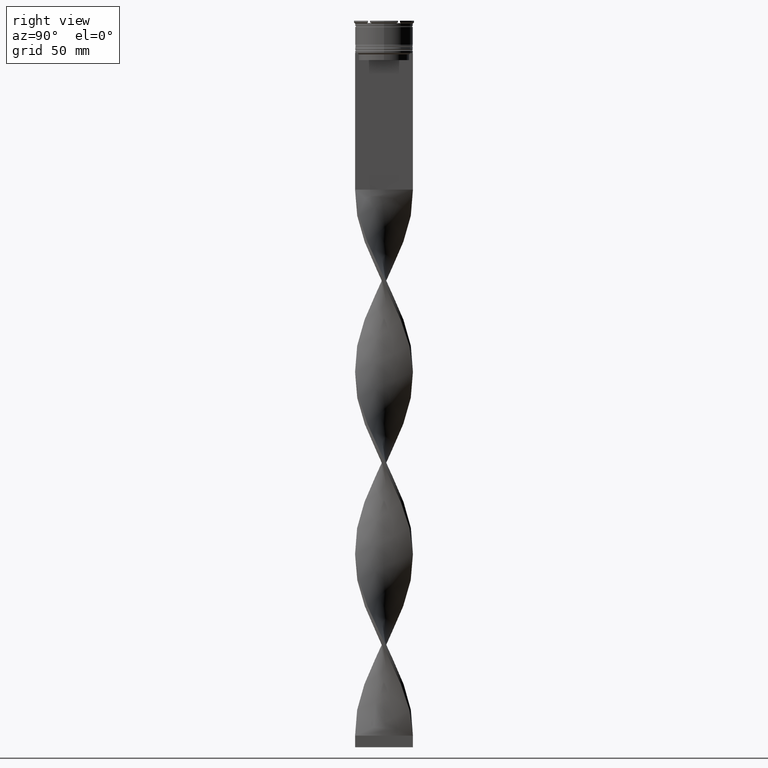
[diagram: clean part render]
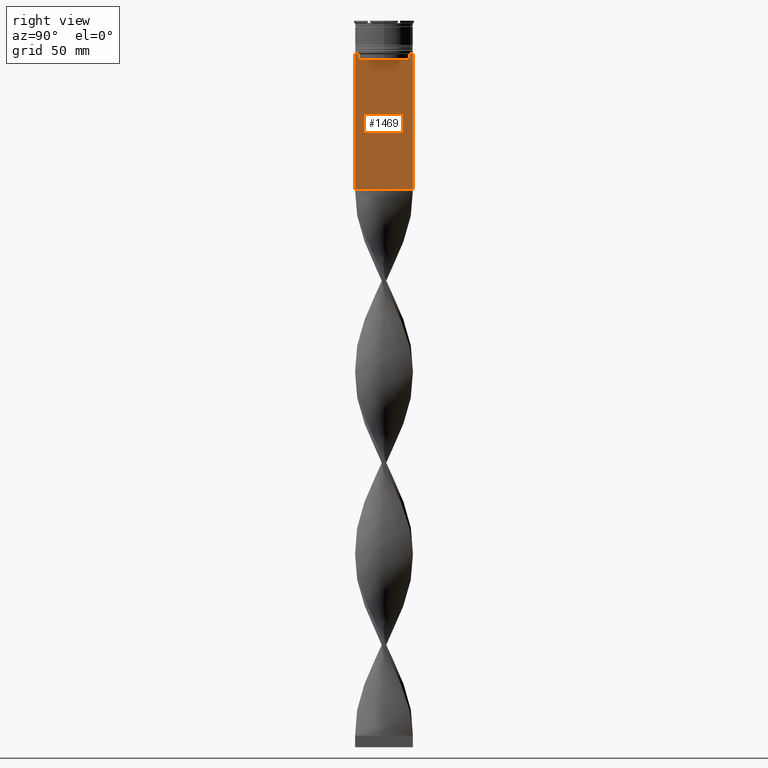
[diagram: same view with one face highlighted and labeled with its STEP entity id]
A machine part, right view. The second image highlights one B-rep face of the part: STEP entity #1469.
In plain terms, the highlighted planar face has unit normal (-1, 0, 0).
Its self-contained STEP definition (entity closure, byte-faithful):
#66 = CARTESIAN_POINT ( 'NONE',  ( 0.7500000000000002220, 12.50000000000000000, -73.00000000000001421 ) ) ;
#314 = VECTOR ( 'NONE', #415, 1000.000000000000000 ) ;
#368 = CARTESIAN_POINT ( 'NONE',  ( 0.7500000000000002220, -10.87416663473574197, -14.50000000000000000 ) ) ;
#415 = DIRECTION ( 'NONE',  ( 0.000000000000000000, 0.000000000000000000, -1.000000000000000000 ) ) ;
#426 = CARTESIAN_POINT ( 'NONE',  ( 0.7500000000000002220, -11.20826532207830439, -14.16667499063191826 ) ) ;
#494 = VECTOR ( 'NONE', #2922, 1000.000000000000000 ) ;
#586 = ORIENTED_EDGE ( 'NONE', *, *, #3860, .T. ) ;
#597 = ORIENTED_EDGE ( 'NONE', *, *, #2725, .T. ) ;
#672 = CARTESIAN_POINT ( 'NONE',  ( 0.7500000000000002220, 10.87416663473574197, 0.000000000000000000 ) ) ;
#705 = VERTEX_POINT ( 'NONE', #924 ) ;
#754 = VECTOR ( 'NONE', #2379, 1000.000000000000000 ) ;
#831 = DIRECTION ( 'NONE',  ( 0.000000000000000000, -1.000000000000000000, 0.000000000000000000 ) ) ;
#832 = DIRECTION ( 'NONE',  ( 0.000000000000000000, 1.000000000000000000, 0.000000000000000000 ) ) ;
#847 = LINE ( 'NONE', #1232, #494 ) ;
#917 = ORIENTED_EDGE ( 'NONE', *, *, #2018, .T. ) ;
#924 = CARTESIAN_POINT ( 'NONE',  ( 0.7500000000000002220, -10.87416663473574019, -17.00000000000000000 ) ) ;
#940 = CARTESIAN_POINT ( 'NONE',  ( 0.7500000000000002220, 12.37729776647553059, -14.00000000000000178 ) ) ;
#973 = FACE_OUTER_BOUND ( 'NONE', #3988, .T. ) ;
#994 = CARTESIAN_POINT ( 'NONE',  ( 0.7500000000000002220, 11.20826531587977648, -14.16667499681701514 ) ) ;
#1028 = LINE ( 'NONE', #672, #2303 ) ;
#1103 = ORIENTED_EDGE ( 'NONE', *, *, #4264, .T. ) ;
#1142 = EDGE_CURVE ( 'NONE', #3143, #705, #3919, .T. ) ;
#1232 = CARTESIAN_POINT ( 'NONE',  ( 0.7500000000000002220, -12.50000000000000000, -14.00000000000000178 ) ) ;
#1345 = LINE ( 'NONE', #3681, #754 ) ;
#1346 = EDGE_CURVE ( 'NONE', #2887, #4087, #2930, .T. ) ;
#1347 = ORIENTED_EDGE ( 'NONE', *, *, #3900, .T. ) ;
#1382 = CARTESIAN_POINT ( 'NONE',  ( 0.7500000000000002220, -12.50000000000000000, -14.00000000000000178 ) ) ;
#1469 = ADVANCED_FACE ( 'NONE', ( #973 ), #3702, .F. ) ;
#1543 = VERTEX_POINT ( 'NONE', #4426 ) ;
#1553 = VERTEX_POINT ( 'NONE', #2686 ) ;
#1566 = DIRECTION ( 'NONE',  ( -0.000000000000000000, -0.000000000000000000, 1.000000000000000000 ) ) ;
#1618 = AXIS2_PLACEMENT_3D ( 'NONE', #2285, #1959, #3316 ) ;
#1712 = LINE ( 'NONE', #4086, #3221 ) ;
#1744 = EDGE_CURVE ( 'NONE', #705, #2484, #2258, .T. ) ;
#1770 = ORIENTED_EDGE ( 'NONE', *, *, #1142, .T. ) ;
#1824 = CARTESIAN_POINT ( 'NONE',  ( 0.7500000000000002220, 10.87416663473574197, -14.50000000000000000 ) ) ;
#1825 = CARTESIAN_POINT ( 'NONE',  ( 0.7500000000000002220, -11.37530219378809093, -14.00000000000000178 ) ) ;
#1891 = LINE ( 'NONE', #4397, #2508 ) ;
#1905 = CARTESIAN_POINT ( 'NONE',  ( 0.7500000000000002220, -10.87416663473574197, 0.000000000000000000 ) ) ;
#1959 = DIRECTION ( 'NONE',  ( -1.000000000000000000, 0.000000000000000000, 0.000000000000000000 ) ) ;
#1981 = CARTESIAN_POINT ( 'NONE',  ( 0.7500000000000002220, 11.37530219378809093, -14.00000000000000178 ) ) ;
#1998 = ORIENTED_EDGE ( 'NONE', *, *, #4462, .T. ) ;
#2018 = EDGE_CURVE ( 'NONE', #1553, #3551, #1345, .T. ) ;
#2059 = ORIENTED_EDGE ( 'NONE', *, *, #3684, .T. ) ;
#2121 = CARTESIAN_POINT ( 'NONE',  ( 0.7500000000000002220, -12.50000000000000000, -73.00000000000001421 ) ) ;
#2142 = DIRECTION ( 'NONE',  ( 0.000000000000000000, 0.000000000000000000, -1.000000000000000000 ) ) ;
#2206 = CARTESIAN_POINT ( 'NONE',  ( 0.7500000000000002220, 10.90000000000000213, -17.00000000000000000 ) ) ;
#2258 = LINE ( 'NONE', #1905, #3285 ) ;
#2285 = CARTESIAN_POINT ( 'NONE',  ( 0.7500000000000002220, -12.50000000000000000, 11.04495957273638673 ) ) ;
#2303 = VECTOR ( 'NONE', #2142, 1000.000000000000000 ) ;
#2355 = VECTOR ( 'NONE', #831, 1000.000000000000000 ) ;
#2379 = DIRECTION ( 'NONE',  ( 0.000000000000000000, -1.000000000000000000, 0.000000000000000000 ) ) ;
#2484 = VERTEX_POINT ( 'NONE', #368 ) ;
#2500 = ORIENTED_EDGE ( 'NONE', *, *, #1744, .T. ) ;
#2508 = VECTOR ( 'NONE', #832, 1000.000000000000000 ) ;
#2545 = VERTEX_POINT ( 'NONE', #66 ) ;
#2686 = CARTESIAN_POINT ( 'NONE',  ( 0.7500000000000002220, -11.37530219378809093, -14.00000000000000178 ) ) ;
#2725 = EDGE_CURVE ( 'NONE', #3758, #2545, #1891, .T. ) ;
#2775 = DIRECTION ( 'NONE',  ( 0.000000000000000000, 0.000000000000000000, -1.000000000000000000 ) ) ;
#2806 = ORIENTED_EDGE ( 'NONE', *, *, #3570, .T. ) ;
#2831 = CARTESIAN_POINT ( 'NONE',  ( 0.7500000000000002220, -12.50000000000000000, 11.04495957273638673 ) ) ;
#2887 = VERTEX_POINT ( 'NONE', #940 ) ;
#2922 = DIRECTION ( 'NONE',  ( 0.000000000000000000, -1.000000000000000000, 0.000000000000000000 ) ) ;
#2930 = LINE ( 'NONE', #4232, #2355 ) ;
#2952 = EDGE_CURVE ( 'NONE', #1543, #2545, #1712, .T. ) ;
#2964 = CARTESIAN_POINT ( 'NONE',  ( 0.7500000000000002220, -12.37729776647553059, -14.00000000000000178 ) ) ;
#3021 = CARTESIAN_POINT ( 'NONE',  ( 0.7500000000000002220, 10.87416663473574197, -14.50000000000000000 ) ) ;
#3095 = CARTESIAN_POINT ( 'NONE',  ( 0.7500000000000002220, 11.37530219378809093, -14.00000000000000178 ) ) ;
#3096 = VECTOR ( 'NONE', #4082, 1000.000000000000000 ) ;
#3143 = VERTEX_POINT ( 'NONE', #4287 ) ;
#3173 = LINE ( 'NONE', #2831, #314 ) ;
#3185 = B_SPLINE_CURVE_WITH_KNOTS ( 'NONE', 3,
 ( #3549, #3203, #426, #1825 ),
 .UNSPECIFIED., .F., .F.,
 ( 4, 4 ),
 ( 0.05009718908159448147, 0.05081156920313959630 ),
 .UNSPECIFIED. ) ;
#3201 = ORIENTED_EDGE ( 'NONE', *, *, #2952, .F. ) ;
#3203 = CARTESIAN_POINT ( 'NONE',  ( 0.7500000000000002220, -11.04122051801870441, -14.33334204001847567 ) ) ;
#3221 = VECTOR ( 'NONE', #2775, 1000.000000000000000 ) ;
#3285 = VECTOR ( 'NONE', #1566, 1000.000000000000000 ) ;
#3316 = DIRECTION ( 'NONE',  ( 0.000000000000000000, 0.000000000000000000, 1.000000000000000000 ) ) ;
#3402 = VERTEX_POINT ( 'NONE', #1824 ) ;
#3549 = CARTESIAN_POINT ( 'NONE',  ( 0.7500000000000002220, -10.87416663473574197, -14.50000000000000000 ) ) ;
#3551 = VERTEX_POINT ( 'NONE', #2964 ) ;
#3570 = EDGE_CURVE ( 'NONE', #1543, #2887, #4057, .T. ) ;
#3577 = VECTOR ( 'NONE', #3582, 1000.000000000000000 ) ;
#3582 = DIRECTION ( 'NONE',  ( 0.000000000000000000, -1.000000000000000000, 0.000000000000000000 ) ) ;
#3681 = CARTESIAN_POINT ( 'NONE',  ( 0.7500000000000002220, -12.50000000000000000, -14.00000000000000178 ) ) ;
#3684 = EDGE_CURVE ( 'NONE', #3402, #3143, #1028, .T. ) ;
#3702 = PLANE ( 'NONE',  #1618 ) ;
#3716 = VERTEX_POINT ( 'NONE', #1382 ) ;
#3719 = CARTESIAN_POINT ( 'NONE',  ( 0.7500000000000002220, -12.50000000000000000, -14.00000000000000178 ) ) ;
#3758 = VERTEX_POINT ( 'NONE', #2121 ) ;
#3860 = EDGE_CURVE ( 'NONE', #3716, #3758, #3173, .T. ) ;
#3900 = EDGE_CURVE ( 'NONE', #4087, #3402, #4158, .T. ) ;
#3919 = LINE ( 'NONE', #2206, #3577 ) ;
#3958 = ORIENTED_EDGE ( 'NONE', *, *, #1346, .T. ) ;
#3988 = EDGE_LOOP ( 'NONE', ( #3958, #1347, #2059, #1770, #2500, #1103, #917, #1998, #586, #597, #3201, #2806 ) ) ;
#4057 = LINE ( 'NONE', #3719, #3096 ) ;
#4082 = DIRECTION ( 'NONE',  ( 0.000000000000000000, -1.000000000000000000, 0.000000000000000000 ) ) ;
#4086 = CARTESIAN_POINT ( 'NONE',  ( 0.7500000000000002220, 12.50000000000000000, 11.04495957273638673 ) ) ;
#4087 = VERTEX_POINT ( 'NONE', #3095 ) ;
#4158 = B_SPLINE_CURVE_WITH_KNOTS ( 'NONE', 3,
 ( #1981, #994, #4452, #3021 ),
 .UNSPECIFIED., .F., .F.,
 ( 4, 4 ),
 ( 0.01936090553552769281, 0.02006881572333104116 ),
 .UNSPECIFIED. ) ;
#4232 = CARTESIAN_POINT ( 'NONE',  ( 0.7500000000000002220, -12.50000000000000000, -14.00000000000000178 ) ) ;
#4264 = EDGE_CURVE ( 'NONE', #2484, #1553, #3185, .T. ) ;
#4287 = CARTESIAN_POINT ( 'NONE',  ( 0.7500000000000002220, 10.87416663473574019, -17.00000000000000000 ) ) ;
#4397 = CARTESIAN_POINT ( 'NONE',  ( 0.7500000000000002220, -12.50000000000000000, -73.00000000000001421 ) ) ;
#4426 = CARTESIAN_POINT ( 'NONE',  ( 0.7500000000000002220, 12.50000000000000000, -14.00000000000000178 ) ) ;
#4452 = CARTESIAN_POINT ( 'NONE',  ( 0.7500000000000002220, 11.04122051153452055, -14.33334204648729404 ) ) ;
#4462 = EDGE_CURVE ( 'NONE', #3551, #3716, #847, .T. ) ;